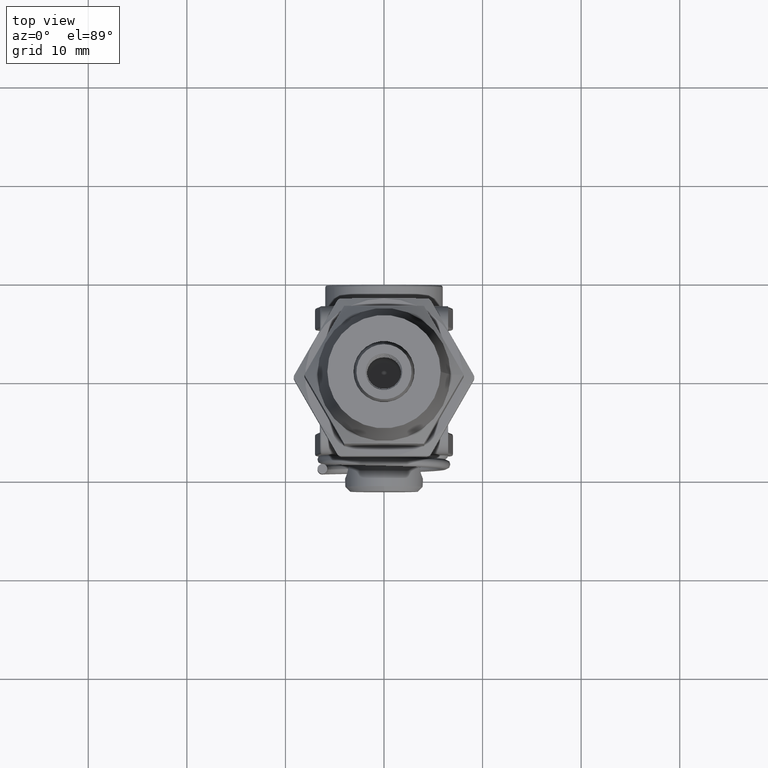
[diagram: clean part render]
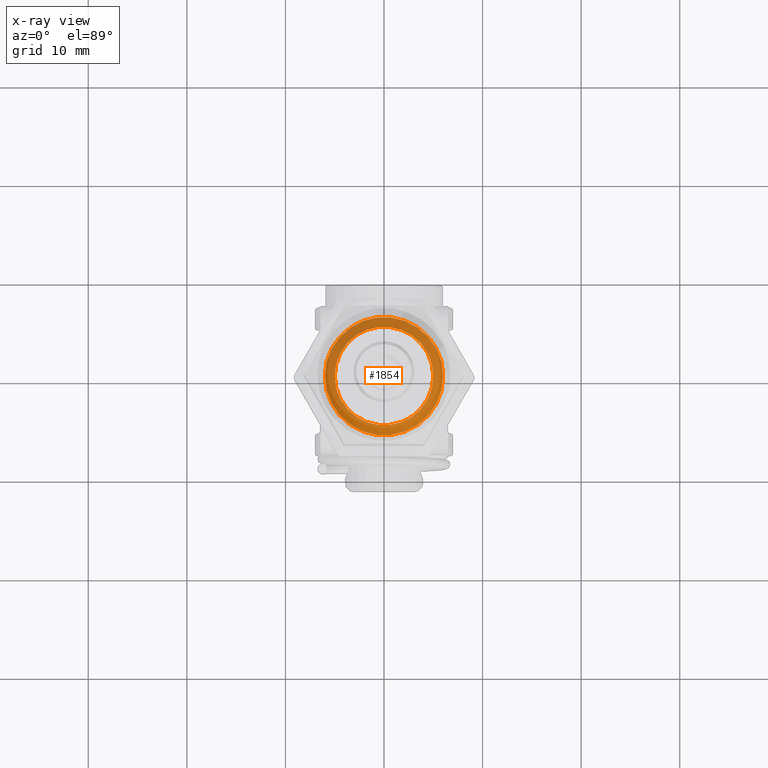
[diagram: x-ray — body ghosted, one internal face saturated and labeled with its STEP entity id]
A machine part, top view, then the same camera in x-ray: the body is ghosted and one INTERNAL B-rep face — a face not visible from any outside direction — is saturated and labeled: STEP entity #1854.
In plain terms, the highlighted conical surface has half-angle 45 deg.
Its self-contained STEP definition (entity closure, byte-faithful):
#1413 = FACE_OUTER_BOUND ( 'NONE', #16522, .T. ) ;
#1854 = ADVANCED_FACE ( 'NONE', ( #1413, #12353 ), #14527, .T. ) ;
#2119 = CIRCLE ( 'NONE', #2789, 6.000000000000000900 ) ;
#2216 = EDGE_LOOP ( 'NONE', ( #14402 ) ) ;
#2789 = AXIS2_PLACEMENT_3D ( 'NONE', #6036, #11146, #16323 ) ;
#4156 = AXIS2_PLACEMENT_3D ( 'NONE', #16697, #11527, #8324 ) ;
#6036 = CARTESIAN_POINT ( 'NONE',  ( 0.0000000000000000000, 0.0000000000000000000, 15.99999999999999600 ) ) ;
#7284 = EDGE_CURVE ( 'NONE', #7309, #7309, #2119, .T. ) ;
#7309 = VERTEX_POINT ( 'NONE', #11832 ) ;
#7358 = ORIENTED_EDGE ( 'NONE', *, *, #7284, .F. ) ;
#7559 = EDGE_CURVE ( 'NONE', #9507, #9507, #22312, .T. ) ;
#8324 = DIRECTION ( 'NONE',  ( 1.000000000000000000, 0.0000000000000000000, 0.0000000000000000000 ) ) ;
#9507 = VERTEX_POINT ( 'NONE', #22171 ) ;
#10728 = DIRECTION ( 'NONE',  ( -1.000000000000000000, 0.0000000000000000000, 0.0000000000000000000 ) ) ;
#11146 = DIRECTION ( 'NONE',  ( 0.0000000000000000000, 0.0000000000000000000, -1.000000000000000000 ) ) ;
#11527 = DIRECTION ( 'NONE',  ( 0.0000000000000000000, 0.0000000000000000000, 1.000000000000000000 ) ) ;
#11832 = CARTESIAN_POINT ( 'NONE',  ( 6.000000000000000900, 0.0000000000000000000, 15.99999999999999600 ) ) ;
#12353 = FACE_BOUND ( 'NONE', #2216, .T. ) ;
#12456 = DIRECTION ( 'NONE',  ( 0.0000000000000000000, 0.0000000000000000000, -1.000000000000000000 ) ) ;
#14402 = ORIENTED_EDGE ( 'NONE', *, *, #7559, .F. ) ;
#14527 = CONICAL_SURFACE ( 'NONE', #16499, 4.999999999999997300, 0.7853981633974479500 ) ;
#16323 = DIRECTION ( 'NONE',  ( 1.000000000000000000, 0.0000000000000000000, 0.0000000000000000000 ) ) ;
#16499 = AXIS2_PLACEMENT_3D ( 'NONE', #17718, #12456, #10728 ) ;
#16522 = EDGE_LOOP ( 'NONE', ( #7358 ) ) ;
#16697 = CARTESIAN_POINT ( 'NONE',  ( 0.0000000000000000000, 0.0000000000000000000, 17.00000000000000000 ) ) ;
#17718 = CARTESIAN_POINT ( 'NONE',  ( 0.0000000000000000000, 0.0000000000000000000, 17.00000000000000000 ) ) ;
#22171 = CARTESIAN_POINT ( 'NONE',  ( 4.999999999999997300, 0.0000000000000000000, 17.00000000000000000 ) ) ;
#22312 = CIRCLE ( 'NONE', #4156, 4.999999999999997300 ) ;